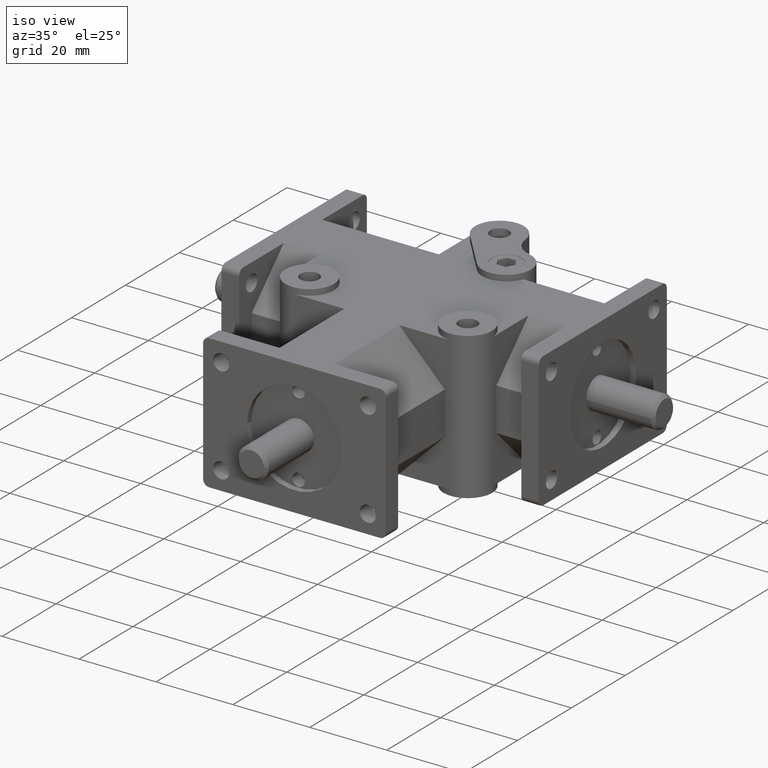
[diagram: clean part render]
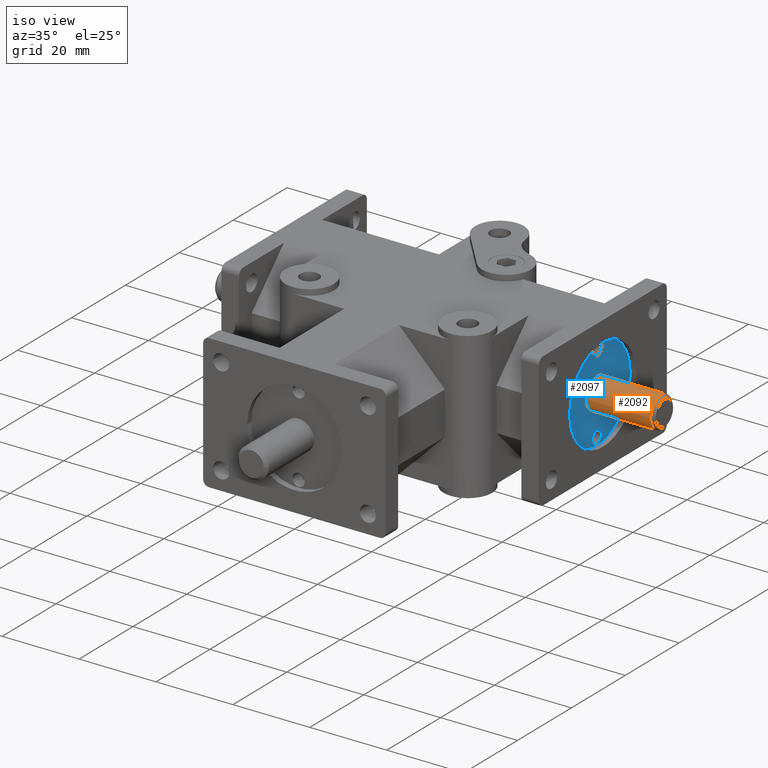
[diagram: same view with the hole feature highlighted: cylindrical wall and planar end face, labeled with their STEP entity ids]
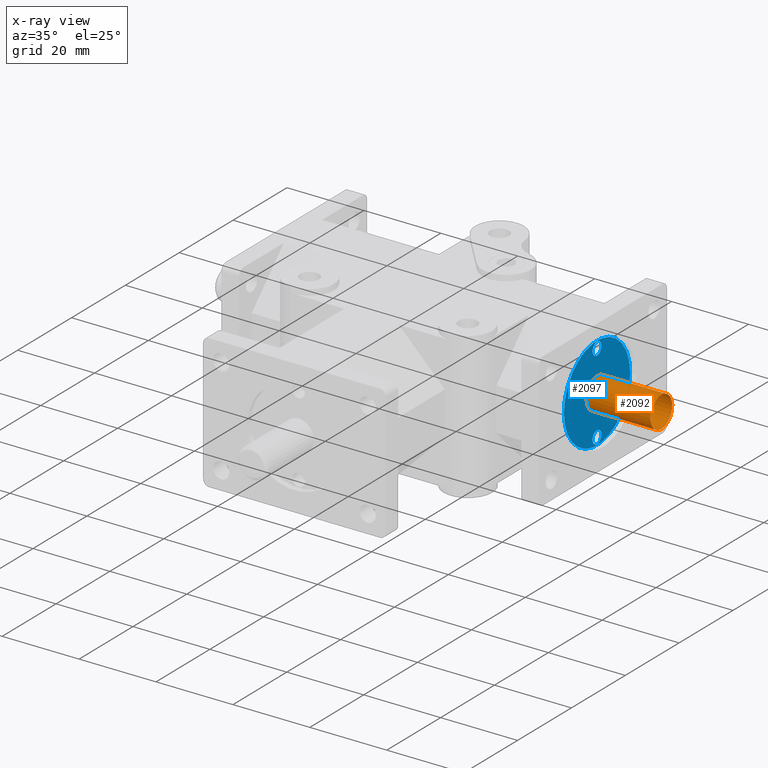
[diagram: x-ray of the same camera — body ghosted, the hole faces saturated]
A machine part, iso view. The highlighted faces form one hole feature of diameter 8 mm: the cylindrical wall (entity #2092, orange) and its adjacent planar end face (entity #2097, blue) — they share a circular edge in the B-rep.
The next image is the same camera in x-ray (body ghosted, the hole faces saturated) — the bore reads through the body.
Wall:
#154=FACE_OUTER_BOUND('',#273,.T.);
#273=EDGE_LOOP('',(#1485,#1486,#1487,#1488,#1489));
#440=CIRCLE('',#2249,4.);
#441=CIRCLE('',#2250,4.);
#443=CIRCLE('',#2253,4.);
#539=LINE('',#3183,#734);
#734=VECTOR('',#2547,4.);
#941=VERTEX_POINT('',#3174);
#942=VERTEX_POINT('',#3175);
#944=VERTEX_POINT('',#3182);
#1153=EDGE_CURVE('',#941,#942,#440,.T.);
#1154=EDGE_CURVE('',#942,#941,#441,.T.);
#1157=EDGE_CURVE('',#942,#944,#539,.T.);
#1158=EDGE_CURVE('',#944,#944,#443,.T.);
#1485=ORIENTED_EDGE('',*,*,#1153,.F.);
#1486=ORIENTED_EDGE('',*,*,#1154,.F.);
#1487=ORIENTED_EDGE('',*,*,#1157,.T.);
#1488=ORIENTED_EDGE('',*,*,#1158,.F.);
#1489=ORIENTED_EDGE('',*,*,#1157,.F.);
#2035=CYLINDRICAL_SURFACE('',#2252,4.);
#2092=ADVANCED_FACE('',(#154),#2035,.T.);
#2249=AXIS2_PLACEMENT_3D('',#3176,#2538,#2539);
#2250=AXIS2_PLACEMENT_3D('',#3177,#2540,#2541);
#2252=AXIS2_PLACEMENT_3D('',#3181,#2545,#2546);
#2253=AXIS2_PLACEMENT_3D('',#3184,#2548,#2549);
#2538=DIRECTION('center_axis',(1.,0.,0.));
#2539=DIRECTION('ref_axis',(0.,-1.,0.));
#2540=DIRECTION('center_axis',(1.,0.,0.));
#2541=DIRECTION('ref_axis',(0.,-1.,0.));
#2545=DIRECTION('center_axis',(1.,0.,0.));
#2546=DIRECTION('ref_axis',(0.,1.,0.));
#2547=DIRECTION('',(-1.,0.,0.));
#2548=DIRECTION('center_axis',(-1.,0.,0.));
#2549=DIRECTION('ref_axis',(0.,1.,0.));
#3174=CARTESIAN_POINT('',(56.513,59.5625,4.89842541528951E-16));
#3175=CARTESIAN_POINT('',(56.513,51.5625,-4.89858719658941E-16));
#3176=CARTESIAN_POINT('Origin',(56.513,55.5625,0.));
#3177=CARTESIAN_POINT('Origin',(56.513,55.5625,0.));
#3181=CARTESIAN_POINT('Origin',(48.513,55.5625,0.));
#3182=CARTESIAN_POINT('',(39.751,51.5625,-4.89858719658941E-16));
#3183=CARTESIAN_POINT('',(48.513,51.5625,-4.89858719658941E-16));
#3184=CARTESIAN_POINT('Origin',(39.751,55.5625,0.));
End face:
#20=FACE_BOUND('',#282,.T.);
#21=FACE_BOUND('',#283,.T.);
#22=FACE_BOUND('',#284,.T.);
#75=PLANE('',#2262);
#159=FACE_OUTER_BOUND('',#281,.T.);
#281=EDGE_LOOP('',(#1503));
#282=EDGE_LOOP('',(#1504));
#283=EDGE_LOOP('',(#1505));
#284=EDGE_LOOP('',(#1506));
#424=CIRCLE('',#2219,1.6256);
#426=CIRCLE('',#2223,1.6256);
#443=CIRCLE('',#2253,4.);
#447=CIRCLE('',#2261,12.3063);
#925=VERTEX_POINT('',#3120);
#927=VERTEX_POINT('',#3127);
#944=VERTEX_POINT('',#3182);
#948=VERTEX_POINT('',#3196);
#1129=EDGE_CURVE('',#925,#925,#424,.T.);
#1132=EDGE_CURVE('',#927,#927,#426,.T.);
#1158=EDGE_CURVE('',#944,#944,#443,.T.);
#1164=EDGE_CURVE('',#948,#948,#447,.T.);
#1503=ORIENTED_EDGE('',*,*,#1164,.T.);
#1504=ORIENTED_EDGE('',*,*,#1129,.T.);
#1505=ORIENTED_EDGE('',*,*,#1132,.T.);
#1506=ORIENTED_EDGE('',*,*,#1158,.T.);
#2097=ADVANCED_FACE('',(#159,#20,#21,#22),#75,.T.);
#2219=AXIS2_PLACEMENT_3D('',#3121,#2470,#2471);
#2223=AXIS2_PLACEMENT_3D('',#3128,#2479,#2480);
#2253=AXIS2_PLACEMENT_3D('',#3184,#2548,#2549);
#2261=AXIS2_PLACEMENT_3D('',#3198,#2566,#2567);
#2262=AXIS2_PLACEMENT_3D('',#3199,#2568,#2569);
#2470=DIRECTION('center_axis',(-1.,0.,0.));
#2471=DIRECTION('ref_axis',(0.,1.,0.));
#2479=DIRECTION('center_axis',(-1.,0.,0.));
#2480=DIRECTION('ref_axis',(0.,1.,0.));
#2548=DIRECTION('center_axis',(-1.,0.,0.));
#2549=DIRECTION('ref_axis',(0.,1.,0.));
#2566=DIRECTION('center_axis',(1.,0.,0.));
#2567=DIRECTION('ref_axis',(0.,1.,0.));
#2568=DIRECTION('center_axis',(1.,0.,0.));
#2569=DIRECTION('ref_axis',(0.,-1.,0.));
#3120=CARTESIAN_POINT('',(39.751,53.9369,10.414));
#3121=CARTESIAN_POINT('Origin',(39.751,55.5625,10.414));
#3127=CARTESIAN_POINT('',(39.751,53.9369,-10.414));
#3128=CARTESIAN_POINT('Origin',(39.751,55.5625,-10.414));
#3182=CARTESIAN_POINT('',(39.751,51.5625,-4.89858719658941E-16));
#3184=CARTESIAN_POINT('Origin',(39.751,55.5625,0.));
#3196=CARTESIAN_POINT('',(39.751,43.2562,1.50708709043471E-15));
#3198=CARTESIAN_POINT('Origin',(39.751,55.5625,0.));
#3199=CARTESIAN_POINT('Origin',(39.751,56.6812545454545,1.10534099037544E-16));